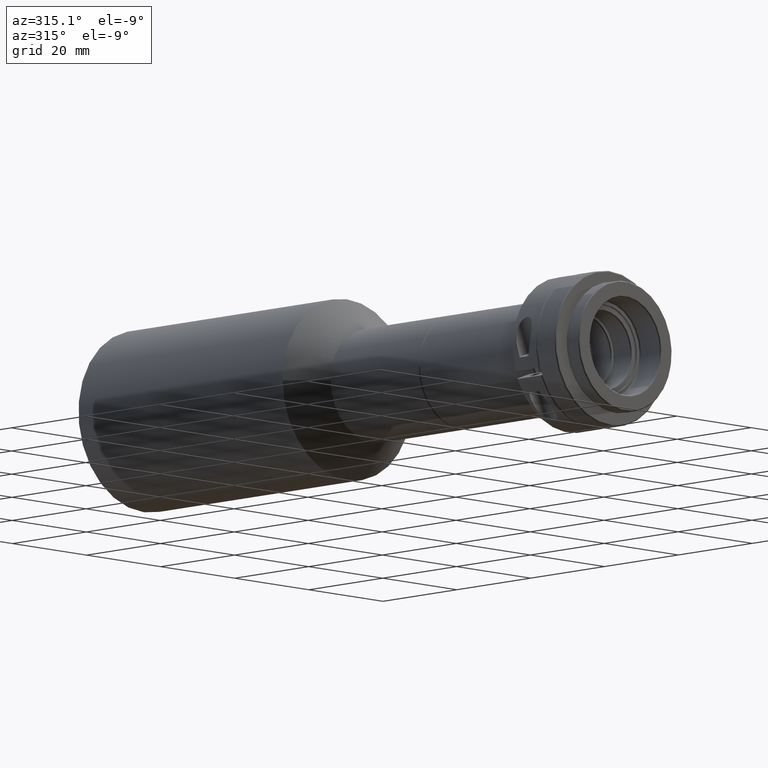
[diagram: clean part render]
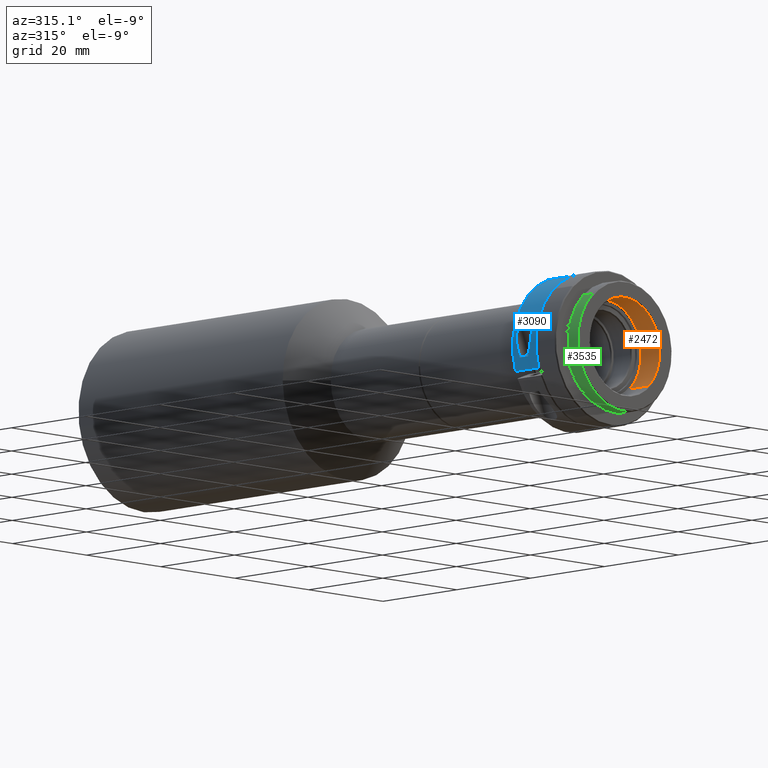
[diagram: same view with three faces highlighted in distinct colors, each labeled with its STEP entity id]
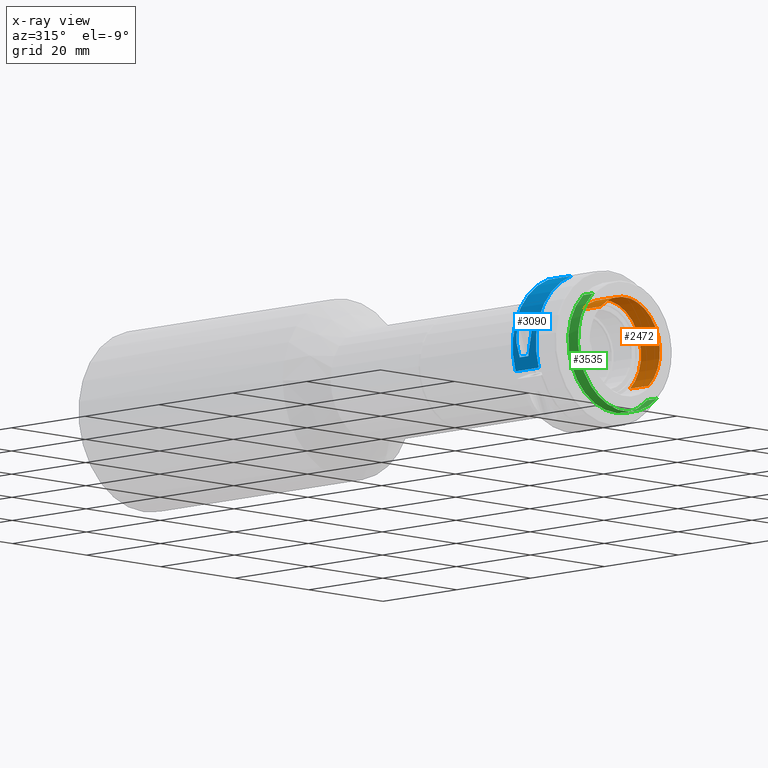
[diagram: x-ray of the same camera — body ghosted, the three highlighted faces saturated]
A machine part, auxiliary view with three faces highlighted in distinct colors.
The next image is the same camera in x-ray (body ghosted, the three faces saturated) — at least one of them is partly hidden behind the body in this view.
Their STEP definitions:

[orange] entity #2472 — the highlighted cylindrical surface (partial cylindrical patch) has radius 9.5 mm, axis along (0, -1, 0).
#22 = AXIS2_PLACEMENT_3D ( 'NONE', #3546, #4858, #2694 ) ;
#200 = CARTESIAN_POINT ( 'NONE',  ( 6.933257426709661608, -5.800000000000003375, 6.494608645251481960 ) ) ;
#237 = VECTOR ( 'NONE', #1570, 1000.000000000000000 ) ;
#306 = LINE ( 'NONE', #3796, #1705 ) ;
#331 = DIRECTION ( 'NONE',  ( -0.000000000000000000, 1.000000000000000000, -0.000000000000000000 ) ) ;
#382 = ORIENTED_EDGE ( 'NONE', *, *, #4669, .T. ) ;
#504 = ORIENTED_EDGE ( 'NONE', *, *, #2933, .F. ) ;
#824 = CARTESIAN_POINT ( 'NONE',  ( 2.342732911129459860E-15, -5.800000000000003375, -2.915018094392330221E-16 ) ) ;
#831 = DIRECTION ( 'NONE',  ( 0.000000000000000000, -1.000000000000000000, 0.000000000000000000 ) ) ;
#846 = DIRECTION ( 'NONE',  ( 0.000000000000000000, -1.000000000000000000, 0.000000000000000000 ) ) ;
#897 = CARTESIAN_POINT ( 'NONE',  ( -6.494608645251481960, -0.7000000000000027311, 6.933257426709662496 ) ) ;
#1003 = ORIENTED_EDGE ( 'NONE', *, *, #1336, .F. ) ;
#1336 = EDGE_CURVE ( 'NONE', #4914, #3000, #4832, .T. ) ;
#1463 = VERTEX_POINT ( 'NONE', #4455 ) ;
#1570 = DIRECTION ( 'NONE',  ( 0.000000000000000000, -1.000000000000000000, 0.000000000000000000 ) ) ;
#1679 = CIRCLE ( 'NONE', #22, 9.500000000000001776 ) ;
#1681 = VERTEX_POINT ( 'NONE', #897 ) ;
#1705 = VECTOR ( 'NONE', #846, 1000.000000000000000 ) ;
#1749 = DIRECTION ( 'NONE',  ( -0.000000000000000000, 1.000000000000000000, -0.000000000000000000 ) ) ;
#2081 = ORIENTED_EDGE ( 'NONE', *, *, #3044, .T. ) ;
#2121 = DIRECTION ( 'NONE',  ( -0.6836430152896297852, 0.000000000000000000, 0.7298165712325959120 ) ) ;
#2233 = DIRECTION ( 'NONE',  ( -0.000000000000000000, 1.000000000000000000, -0.000000000000000000 ) ) ;
#2310 = CIRCLE ( 'NONE', #4601, 9.500000000000001776 ) ;
#2345 = CIRCLE ( 'NONE', #3073, 9.500000000000001776 ) ;
#2449 = CARTESIAN_POINT ( 'NONE',  ( 6.494608645251484624, -5.800000000000003375, -6.933257426709661608 ) ) ;
#2472 = ADVANCED_FACE ( 'NONE', ( #4693 ), #5582, .F. ) ;
#2493 = CARTESIAN_POINT ( 'NONE',  ( 2.342732911129459860E-15, 7.500000000000000000, -2.915018094392330221E-16 ) ) ;
#2694 = DIRECTION ( 'NONE',  ( -0.6836430152896297852, 0.000000000000000000, 0.7298165712325959120 ) ) ;
#2834 = VERTEX_POINT ( 'NONE', #4743 ) ;
#2933 = EDGE_CURVE ( 'NONE', #1463, #4914, #2310, .T. ) ;
#3000 = VERTEX_POINT ( 'NONE', #2449 ) ;
#3044 = EDGE_CURVE ( 'NONE', #1681, #3374, #1679, .T. ) ;
#3073 = AXIS2_PLACEMENT_3D ( 'NONE', #4470, #2233, #4410 ) ;
#3113 = ORIENTED_EDGE ( 'NONE', *, *, #5464, .T. ) ;
#3374 = VERTEX_POINT ( 'NONE', #4210 ) ;
#3546 = CARTESIAN_POINT ( 'NONE',  ( 2.342732911129459860E-15, -0.7000000000000027311, -2.915018094392330221E-16 ) ) ;
#3796 = CARTESIAN_POINT ( 'NONE',  ( 6.494608645251486401, 7.500000000000000000, -6.933257426709663385 ) ) ;
#3816 = LINE ( 'NONE', #5562, #237 ) ;
#3964 = EDGE_LOOP ( 'NONE', ( #2081, #382, #3113, #1003, #504, #4461 ) ) ;
#4210 = CARTESIAN_POINT ( 'NONE',  ( 6.933257426709664273, -0.7000000000000027311, 6.494608645251483736 ) ) ;
#4255 = CARTESIAN_POINT ( 'NONE',  ( 2.342732911129459860E-15, -5.800000000000003375, -2.915018094392330221E-16 ) ) ;
#4342 = DIRECTION ( 'NONE',  ( -0.6836430152896297852, 0.000000000000000000, 0.7298165712325959120 ) ) ;
#4410 = DIRECTION ( 'NONE',  ( -0.6836430152896297852, 0.000000000000000000, 0.7298165712325959120 ) ) ;
#4455 = CARTESIAN_POINT ( 'NONE',  ( -6.494608645251480183, -5.800000000000003375, 6.933257426709660720 ) ) ;
#4461 = ORIENTED_EDGE ( 'NONE', *, *, #4630, .F. ) ;
#4470 = CARTESIAN_POINT ( 'NONE',  ( 2.342732911129459860E-15, -0.7000000000000027311, -2.915018094392330221E-16 ) ) ;
#4601 = AXIS2_PLACEMENT_3D ( 'NONE', #824, #1749, #4342 ) ;
#4630 = EDGE_CURVE ( 'NONE', #1681, #1463, #3816, .T. ) ;
#4669 = EDGE_CURVE ( 'NONE', #3374, #2834, #2345, .T. ) ;
#4693 = FACE_OUTER_BOUND ( 'NONE', #3964, .T. ) ;
#4743 = CARTESIAN_POINT ( 'NONE',  ( 6.494608645251484624, -0.7000000000000027311, -6.933257426709661608 ) ) ;
#4747 = AXIS2_PLACEMENT_3D ( 'NONE', #4255, #331, #5626 ) ;
#4832 = CIRCLE ( 'NONE', #4747, 9.500000000000001776 ) ;
#4858 = DIRECTION ( 'NONE',  ( -0.000000000000000000, 1.000000000000000000, -0.000000000000000000 ) ) ;
#4914 = VERTEX_POINT ( 'NONE', #200 ) ;
#5065 = AXIS2_PLACEMENT_3D ( 'NONE', #2493, #831, #2121 ) ;
#5464 = EDGE_CURVE ( 'NONE', #2834, #3000, #306, .T. ) ;
#5562 = CARTESIAN_POINT ( 'NONE',  ( -6.494608645251481960, 7.500000000000000000, 6.933257426709662496 ) ) ;
#5582 = CYLINDRICAL_SURFACE ( 'NONE', #5065, 9.500000000000001776 ) ;
#5626 = DIRECTION ( 'NONE',  ( -0.6836430152896297852, 0.000000000000000000, 0.7298165712325959120 ) ) ;

[blue] entity #3090 — the highlighted cylindrical surface (partial cylindrical patch) has radius 15 mm, axis along (0, -1, 0).
#28 = CARTESIAN_POINT ( 'NONE',  ( -13.95767011002704727, 6.813473923541809363, 5.493947109836224030 ) ) ;
#50 = DIRECTION ( 'NONE',  ( -0.3638279909919660549, 0.000000000000000000, 0.9314661523484092376 ) ) ;
#78 = DIRECTION ( 'NONE',  ( 0.000000000000000000, -1.000000000000000000, 0.000000000000000000 ) ) ;
#308 = CARTESIAN_POINT ( 'NONE',  ( -14.61917497007567235, 4.691248524133065700, 3.363624771755247433 ) ) ;
#381 = ORIENTED_EDGE ( 'NONE', *, *, #947, .F. ) ;
#383 = CARTESIAN_POINT ( 'NONE',  ( -14.82253756377135723, 7.739430026721361600, -2.300517370198939648 ) ) ;
#403 = CARTESIAN_POINT ( 'NONE',  ( -1.925929944387240232E-31, 3.200000000000000622, 9.629649721936179265E-32 ) ) ;
#409 = CARTESIAN_POINT ( 'NONE',  ( -13.97346842358803443, 6.997262284611981187, 5.454184977368203846 ) ) ;
#420 = CARTESIAN_POINT ( 'NONE',  ( -14.82253756377135723, 5.460569973278640354, -2.300517370198939204 ) ) ;
#440 = CARTESIAN_POINT ( 'NONE',  ( -14.95936116922012005, 4.616709208261910113, 1.334081876783003384 ) ) ;
#468 = CARTESIAN_POINT ( 'NONE',  ( -14.94806197192459152, 8.555394554781077687, 1.300454858818656856 ) ) ;
#474 = LINE ( 'NONE', #1818, #5315 ) ;
#494 = CARTESIAN_POINT ( 'NONE',  ( -14.35099906203846132, 8.188645166390811525, 4.367970408821891581 ) ) ;
#738 = CARTESIAN_POINT ( 'NONE',  ( -15.00300468881339988, 8.391440910116786611, 0.2010204073618589160 ) ) ;
#840 = CARTESIAN_POINT ( 'NONE',  ( -14.99274954613821009, 5.034936409389693779, -0.8696477950056987760 ) ) ;
#894 = DIRECTION ( 'NONE',  ( -0.3638279909919668875, 0.000000000000000000, 0.9314661523484087935 ) ) ;
#903 = CARTESIAN_POINT ( 'NONE',  ( -14.82253756377135723, 10.00000000000000000, -2.300517370198941425 ) ) ;
#942 = DIRECTION ( 'NONE',  ( 0.000000000000000000, -1.000000000000000000, 0.000000000000000000 ) ) ;
#947 = EDGE_CURVE ( 'NONE', #5196, #1714, #3312, .T. ) ;
#1019 = LINE ( 'NONE', #903, #1077 ) ;
#1077 = VECTOR ( 'NONE', #1337, 1000.000000000000000 ) ;
#1165 = DIRECTION ( 'NONE',  ( 0.000000000000000000, -1.000000000000000000, 0.000000000000000000 ) ) ;
#1174 = CARTESIAN_POINT ( 'NONE',  ( -14.02883959740956499, 7.345923065832362653, 5.310142474784824707 ) ) ;
#1274 = ORIENTED_EDGE ( 'NONE', *, *, #1689, .T. ) ;
#1279 = CARTESIAN_POINT ( 'NONE',  ( -14.80364164287783169, 4.594160461538666418, 2.448011309315415662 ) ) ;
#1330 = CARTESIAN_POINT ( 'NONE',  ( -14.57685469534135159, 4.727020507867427668, 3.542375034159224612 ) ) ;
#1337 = DIRECTION ( 'NONE',  ( -0.000000000000000000, 1.000000000000000000, -0.000000000000000000 ) ) ;
#1358 = CARTESIAN_POINT ( 'NONE',  ( -14.58925045143478094, 8.490330258056550505, 3.505792633198336006 ) ) ;
#1375 = FACE_OUTER_BOUND ( 'NONE', #4852, .T. ) ;
#1406 = VECTOR ( 'NONE', #1165, 1000.000000000000000 ) ;
#1440 = CARTESIAN_POINT ( 'NONE',  ( -1.925929944387240232E-31, 10.00000000000000000, 9.629649721936179265E-32 ) ) ;
#1457 = EDGE_CURVE ( 'NONE', #2947, #4215, #1019, .T. ) ;
#1504 = AXIS2_PLACEMENT_3D ( 'NONE', #1440, #78, #2288 ) ;
#1609 = CARTESIAN_POINT ( 'NONE',  ( -14.80887365836536240, 8.606510247566570015, 2.416019034096663631 ) ) ;
#1689 = EDGE_CURVE ( 'NONE', #4215, #2947, #4755, .T. ) ;
#1695 = ORIENTED_EDGE ( 'NONE', *, *, #3074, .T. ) ;
#1709 = CARTESIAN_POINT ( 'NONE',  ( -13.98223090913093003, 6.155328992396922771, 5.431253186357906770 ) ) ;
#1714 = VERTEX_POINT ( 'NONE', #2649 ) ;
#1736 = ORIENTED_EDGE ( 'NONE', *, *, #1979, .T. ) ;
#1818 = CARTESIAN_POINT ( 'NONE',  ( -14.22738735882872696, 10.00000000000000000, -4.751994206839959212 ) ) ;
#1979 = EDGE_CURVE ( 'NONE', #4515, #1714, #3187, .T. ) ;
#2067 = DIRECTION ( 'NONE',  ( -0.000000000000000000, 1.000000000000000000, -0.000000000000000000 ) ) ;
#2139 = ORIENTED_EDGE ( 'NONE', *, *, #4232, .T. ) ;
#2186 = CARTESIAN_POINT ( 'NONE',  ( -14.82253756377135723, 5.460569973278640354, -2.300517370198939204 ) ) ;
#2258 = CYLINDRICAL_SURFACE ( 'NONE', #1504, 15.00000000000000000 ) ;
#2263 = AXIS2_PLACEMENT_3D ( 'NONE', #403, #2067, #894 ) ;
#2288 = DIRECTION ( 'NONE',  ( -0.3638279909919660549, 0.000000000000000000, 0.9314661523484092376 ) ) ;
#2409 = AXIS2_PLACEMENT_3D ( 'NONE', #3898, #942, #50 ) ;
#2412 = VERTEX_POINT ( 'NONE', #5554 ) ;
#2485 = CARTESIAN_POINT ( 'NONE',  ( -14.06703149255522867, 7.502405842127815028, 5.209151638282586205 ) ) ;
#2592 = CARTESIAN_POINT ( 'NONE',  ( -13.95907411612309978, 6.432489453155941561, 5.490407083665107990 ) ) ;
#2620 = CARTESIAN_POINT ( 'NONE',  ( -14.20224762834093113, 7.898224183562457590, 4.829166789200099785 ) ) ;
#2649 = CARTESIAN_POINT ( 'NONE',  ( -5.457419864879489602, 3.200000000000000622, 13.97199228522613623 ) ) ;
#2654 = DIRECTION ( 'NONE',  ( 0.000000000000000000, -1.000000000000000000, 0.000000000000000000 ) ) ;
#2867 = CIRCLE ( 'NONE', #2409, 15.00000000000000000 ) ;
#2929 = CARTESIAN_POINT ( 'NONE',  ( -14.49733882434498433, 8.402871485838486976, 3.866332279568043262 ) ) ;
#2944 = CARTESIAN_POINT ( 'NONE',  ( -14.22738735882872518, 3.199999999999997069, -4.751994206839960988 ) ) ;
#2947 = VERTEX_POINT ( 'NONE', #420 ) ;
#3023 = CARTESIAN_POINT ( 'NONE',  ( -14.74431028125711762, 8.591614683369726890, 2.782467439466902892 ) ) ;
#3047 = CARTESIAN_POINT ( 'NONE',  ( -14.29084956561803033, 5.115139570622527110, 4.560303761385882559 ) ) ;
#3074 = EDGE_CURVE ( 'NONE', #5196, #2412, #2867, .T. ) ;
#3090 = ADVANCED_FACE ( 'NONE', ( #1375, #3117 ), #2258, .T. ) ;
#3103 = CARTESIAN_POINT ( 'NONE',  ( -14.05855297822327010, 5.730387514094700485, 5.231897950711133838 ) ) ;
#3117 = FACE_BOUND ( 'NONE', #4381, .T. ) ;
#3187 = CIRCLE ( 'NONE', #2263, 15.00000000000000000 ) ;
#3312 = LINE ( 'NONE', #5074, #1406 ) ;
#3350 = CARTESIAN_POINT ( 'NONE',  ( -14.15452829467469975, 7.780731013730261658, 4.966484124450216697 ) ) ;
#3471 = CARTESIAN_POINT ( 'NONE',  ( -14.19205520036340751, 5.325829666515439875, 4.859045265592127016 ) ) ;
#3526 = CARTESIAN_POINT ( 'NONE',  ( -14.99142131482785700, 8.161138679641117832, -0.8829057414333780773 ) ) ;
#3798 = CARTESIAN_POINT ( 'NONE',  ( -13.97213229384395561, 6.247333608355417844, 5.457090734732254589 ) ) ;
#3898 = CARTESIAN_POINT ( 'NONE',  ( -1.925929944387240232E-31, 9.500000000000000000, 9.629649721936179265E-32 ) ) ;
#3901 = CARTESIAN_POINT ( 'NONE',  ( -14.43845196051287161, 4.881796262127624964, 4.069527703404490993 ) ) ;
#3954 = CARTESIAN_POINT ( 'NONE',  ( -13.95595406894604373, 6.526548116065925775, 5.498304144186044518 ) ) ;
#4040 = ORIENTED_EDGE ( 'NONE', *, *, #1457, .T. ) ;
#4215 = VERTEX_POINT ( 'NONE', #383 ) ;
#4228 = CARTESIAN_POINT ( 'NONE',  ( -14.02103997805258295, 5.891907585223520094, 5.330629176388864465 ) ) ;
#4232 = EDGE_CURVE ( 'NONE', #2412, #4515, #474, .T. ) ;
#4331 = CARTESIAN_POINT ( 'NONE',  ( -14.34071650469452486, 5.028300536200490001, 4.401568002064327523 ) ) ;
#4360 = CARTESIAN_POINT ( 'NONE',  ( -14.91087984700850910, 8.588756933967459872, 1.674977370181559344 ) ) ;
#4381 = EDGE_LOOP ( 'NONE', ( #4040, #1274 ) ) ;
#4464 = CARTESIAN_POINT ( 'NONE',  ( -5.457419864879489602, 9.500000000000000000, 13.97199228522613623 ) ) ;
#4515 = VERTEX_POINT ( 'NONE', #2944 ) ;
#4664 = CARTESIAN_POINT ( 'NONE',  ( -14.30029372966265555, 8.102164118678738092, 4.530594753451216761 ) ) ;
#4755 = B_SPLINE_CURVE_WITH_KNOTS ( 'NONE', 3,
 ( #5270, #5517, #3526, #738, #5547, #468, #4360, #1609, #3023, #1358, #2929, #494, #4664, #2620, #3350, #2485, #1174, #409, #28, #3954, #2592, #3798, #1709, #4228, #3103, #5211, #3471, #3047, #4331, #3901, #5188, #1330, #308, #4841, #1279, #440, #4758, #840, #5648, #2186 ),
 .UNSPECIFIED., .F., .F.,
 ( 4, 2, 2, 2, 2, 2, 2, 2, 2, 2, 2, 2, 2, 2, 2, 2, 2, 2, 2, 4 ),
 ( 2.742838647325547832E-18, 0.002216241673122502920, 0.003324362509683753079, 0.004432483346245003238, 0.005540604182806252963, 0.006648725019367503555, 0.007202785437648128418, 0.007756845855928755015, 0.008310906274209380745, 0.008864966692490008210, 0.009141996901630323677, 0.009419027110770635675, 0.009973087529051266609, 0.01052714794733189407, 0.01108120836561252327, 0.01163526878389315421, 0.01218932920217378167, 0.01329745003873503487, 0.01551369171185754126, 0.01772993338498004764 ),
 .UNSPECIFIED. ) ;
#4758 = CARTESIAN_POINT ( 'NONE',  ( -15.00602406312295578, 4.725276068152818532, 0.5983878821972479223 ) ) ;
#4841 = CARTESIAN_POINT ( 'NONE',  ( -14.73697793285474233, 4.611248667806846946, 2.821076930883496647 ) ) ;
#4852 = EDGE_LOOP ( 'NONE', ( #381, #1695, #2139, #1736 ) ) ;
#5074 = CARTESIAN_POINT ( 'NONE',  ( -5.457419864879490490, 10.00000000000000000, 13.97199228522613801 ) ) ;
#5188 = CARTESIAN_POINT ( 'NONE',  ( -14.48662910798578629, 4.822061769550477273, 3.894957095962528815 ) ) ;
#5196 = VERTEX_POINT ( 'NONE', #4464 ) ;
#5211 = CARTESIAN_POINT ( 'NONE',  ( -14.14390730756515424, 5.448386952257022742, 4.996554220977728278 ) ) ;
#5270 = CARTESIAN_POINT ( 'NONE',  ( -14.82253756377135723, 7.739430026721361600, -2.300517370198939648 ) ) ;
#5315 = VECTOR ( 'NONE', #2654, 1000.000000000000000 ) ;
#5517 = CARTESIAN_POINT ( 'NONE',  ( -14.93205707113286529, 7.962622818248169310, -1.594868704876646337 ) ) ;
#5547 = CARTESIAN_POINT ( 'NONE',  ( -14.99388167267417238, 8.456823944699344509, 0.5650238421241836617 ) ) ;
#5554 = CARTESIAN_POINT ( 'NONE',  ( -14.22738735882872518, 9.500000000000005329, -4.751994206839960100 ) ) ;
#5648 = CARTESIAN_POINT ( 'NONE',  ( -14.93255419175534371, 5.236364086073085566, -1.591665690982743353 ) ) ;

[green] entity #3535 — the highlighted cylindrical surface (partial cylindrical patch) has radius 12.63 mm, axis along (0, -1, 0).
#62 = VERTEX_POINT ( 'NONE', #139 ) ;
#139 = CARTESIAN_POINT ( 'NONE',  ( 8.634411283108025970, -5.800000000000003375, -9.217583294667686999 ) ) ;
#164 = CARTESIAN_POINT ( 'NONE',  ( 8.634411283108027746, 7.500000000000000000, -9.217583294667688776 ) ) ;
#175 = ORIENTED_EDGE ( 'NONE', *, *, #699, .F. ) ;
#202 = DIRECTION ( 'NONE',  ( -0.6836430152896300072, 0.000000000000000000, 0.7298165712325959120 ) ) ;
#234 = EDGE_LOOP ( 'NONE', ( #1802, #1589, #3652, #372, #175 ) ) ;
#372 = ORIENTED_EDGE ( 'NONE', *, *, #2105, .T. ) ;
#405 = AXIS2_PLACEMENT_3D ( 'NONE', #2582, #3861, #4672 ) ;
#699 = EDGE_CURVE ( 'NONE', #1961, #1750, #1366, .T. ) ;
#776 = CARTESIAN_POINT ( 'NONE',  ( -8.634411283108024193, -3.200000000000001510, 9.217583294667685223 ) ) ;
#1037 = DIRECTION ( 'NONE',  ( -0.000000000000000000, 1.000000000000000000, -0.000000000000000000 ) ) ;
#1118 = AXIS2_PLACEMENT_3D ( 'NONE', #2879, #4072, #1903 ) ;
#1135 = CYLINDRICAL_SURFACE ( 'NONE', #1118, 12.63000000000000078 ) ;
#1366 = LINE ( 'NONE', #1796, #3824 ) ;
#1521 = LINE ( 'NONE', #164, #3947 ) ;
#1589 = ORIENTED_EDGE ( 'NONE', *, *, #4066, .T. ) ;
#1750 = VERTEX_POINT ( 'NONE', #2738 ) ;
#1796 = CARTESIAN_POINT ( 'NONE',  ( -8.634411283108025970, 7.500000000000000000, 9.217583294667686999 ) ) ;
#1802 = ORIENTED_EDGE ( 'NONE', *, *, #2241, .F. ) ;
#1900 = CIRCLE ( 'NONE', #5374, 12.63000000000000256 ) ;
#1903 = DIRECTION ( 'NONE',  ( -0.6836430152896300072, 0.000000000000000000, 0.7298165712325959120 ) ) ;
#1961 = VERTEX_POINT ( 'NONE', #776 ) ;
#1968 = CARTESIAN_POINT ( 'NONE',  ( -9.217583294667685223, -5.800000000000003375, -8.634411283108027746 ) ) ;
#2105 = EDGE_CURVE ( 'NONE', #5241, #1750, #1900, .T. ) ;
#2223 = DIRECTION ( 'NONE',  ( 0.000000000000000000, -1.000000000000000000, 0.000000000000000000 ) ) ;
#2241 = EDGE_CURVE ( 'NONE', #5070, #1961, #2266, .T. ) ;
#2266 = CIRCLE ( 'NONE', #5467, 12.63000000000000078 ) ;
#2479 = EDGE_CURVE ( 'NONE', #62, #5241, #2700, .T. ) ;
#2582 = CARTESIAN_POINT ( 'NONE',  ( 2.342732911129459860E-15, -5.800000000000003375, -2.915018094392330221E-16 ) ) ;
#2700 = CIRCLE ( 'NONE', #405, 12.63000000000000078 ) ;
#2738 = CARTESIAN_POINT ( 'NONE',  ( -8.634411283108024193, -5.800000000000003375, 9.217583294667685223 ) ) ;
#2879 = CARTESIAN_POINT ( 'NONE',  ( 2.342732911129459860E-15, 7.500000000000000000, -2.915018094392330221E-16 ) ) ;
#3156 = DIRECTION ( 'NONE',  ( -0.6836430152896306733, 0.000000000000000000, 0.7298165712325952459 ) ) ;
#3316 = DIRECTION ( 'NONE',  ( 0.000000000000000000, -1.000000000000000000, 0.000000000000000000 ) ) ;
#3357 = CARTESIAN_POINT ( 'NONE',  ( 2.342732911129459860E-15, -3.200000000000001510, -2.915018094392330221E-16 ) ) ;
#3535 = ADVANCED_FACE ( 'NONE', ( #3730 ), #1135, .T. ) ;
#3652 = ORIENTED_EDGE ( 'NONE', *, *, #2479, .T. ) ;
#3730 = FACE_OUTER_BOUND ( 'NONE', #234, .T. ) ;
#3824 = VECTOR ( 'NONE', #2223, 1000.000000000000000 ) ;
#3861 = DIRECTION ( 'NONE',  ( -0.000000000000000000, 1.000000000000000000, -0.000000000000000000 ) ) ;
#3947 = VECTOR ( 'NONE', #3316, 1000.000000000000000 ) ;
#3948 = CARTESIAN_POINT ( 'NONE',  ( 2.342732911129459860E-15, -5.800000000000003375, -2.915018094392330221E-16 ) ) ;
#4066 = EDGE_CURVE ( 'NONE', #5070, #62, #1521, .T. ) ;
#4072 = DIRECTION ( 'NONE',  ( 0.000000000000000000, -1.000000000000000000, 0.000000000000000000 ) ) ;
#4587 = DIRECTION ( 'NONE',  ( -0.000000000000000000, 1.000000000000000000, -0.000000000000000000 ) ) ;
#4672 = DIRECTION ( 'NONE',  ( -0.6836430152896300072, 0.000000000000000000, 0.7298165712325959120 ) ) ;
#5070 = VERTEX_POINT ( 'NONE', #5553 ) ;
#5241 = VERTEX_POINT ( 'NONE', #1968 ) ;
#5374 = AXIS2_PLACEMENT_3D ( 'NONE', #3948, #1037, #3156 ) ;
#5467 = AXIS2_PLACEMENT_3D ( 'NONE', #3357, #4587, #202 ) ;
#5553 = CARTESIAN_POINT ( 'NONE',  ( 8.634411283108025970, -3.200000000000001510, -9.217583294667686999 ) ) ;